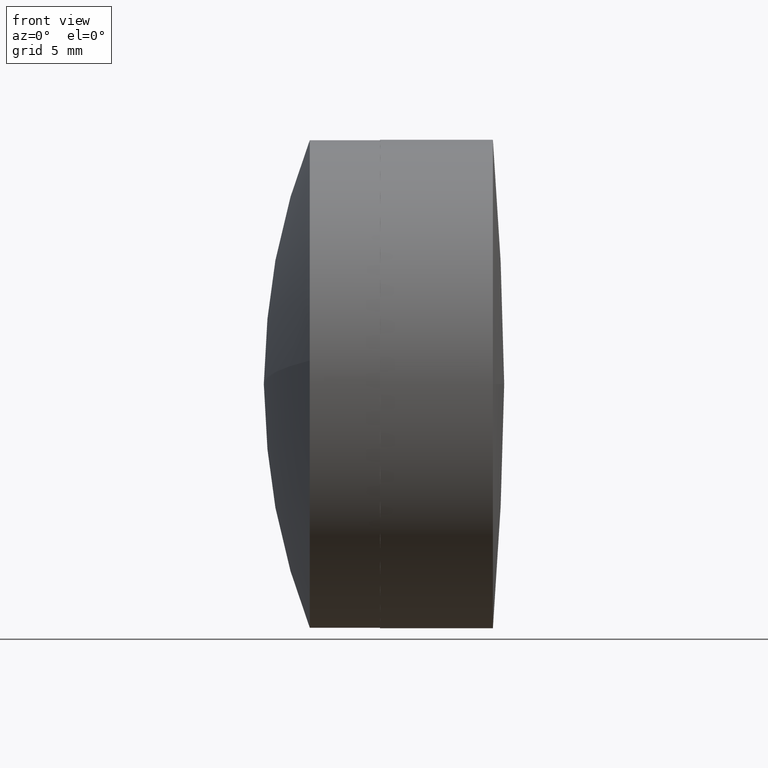
[diagram: clean part render]
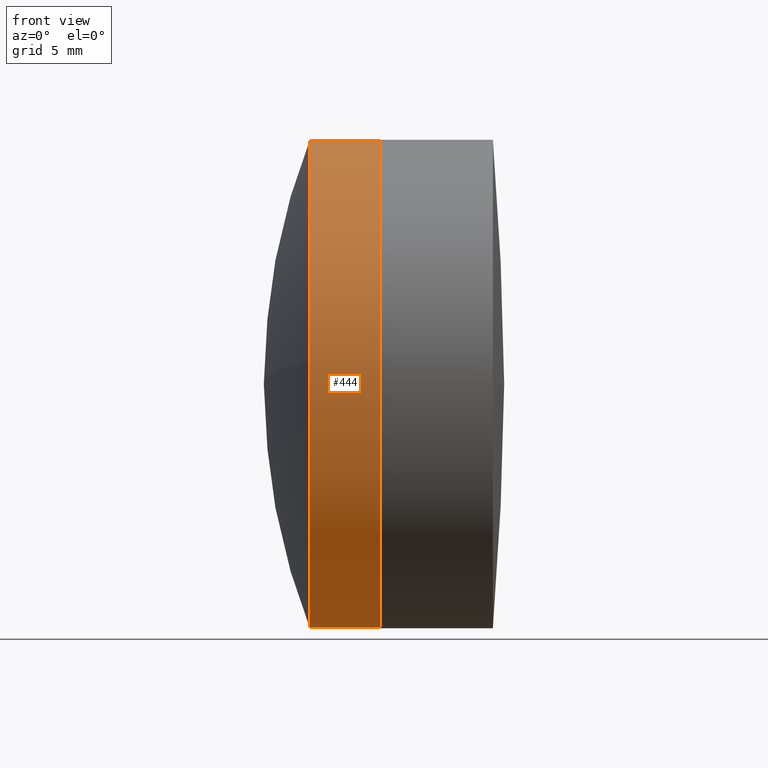
[diagram: same view with one face highlighted and labeled with its STEP entity id]
A machine part, front view. The second image highlights one B-rep face of the part: STEP entity #444.
In plain terms, the highlighted cylindrical surface (partial cylindrical patch) has radius 12.7 mm, axis along (-1, 0, 0).
Its self-contained STEP definition (entity closure, byte-faithful):
#1 = DIRECTION ( 'NONE',  ( -1.000000000000000000, 2.569559148790645509E-17, 4.163336342344337027E-17 ) ) ;
#2 = CARTESIAN_POINT ( 'NONE',  ( -77.59359883042631623, 28.48110664956988103, -12.64106487517395472 ) ) ;
#3 = DIRECTION ( 'NONE',  ( -1.000000000000000000, 2.569559148790645509E-17, 4.163336342344337027E-17 ) ) ;
#4 = CARTESIAN_POINT ( 'NONE',  ( -79.98416275664021668, 28.48110664956988103, -12.64106487517395649 ) ) ;
#10 = VERTEX_POINT ( 'NONE', #410 ) ;
#28 = AXIS2_PLACEMENT_3D ( 'NONE', #442, #349, #173 ) ;
#38 = DIRECTION ( 'NONE',  ( -1.000000000000000000, 2.569559148790645509E-17, 4.163336342344337027E-17 ) ) ;
#62 = LINE ( 'NONE', #4, #445 ) ;
#67 = FACE_OUTER_BOUND ( 'NONE', #161, .T. ) ;
#69 = LINE ( 'NONE', #317, #294 ) ;
#73 = DIRECTION ( 'NONE',  ( 0.000000000000000000, 0.09622674894935845380, 0.9953594389900752848 ) ) ;
#74 = DIRECTION ( 'NONE',  ( 0.000000000000000000, 0.09622674894935845380, 0.9953594389900752848 ) ) ;
#80 = EDGE_CURVE ( 'NONE', #263, #345, #169, .T. ) ;
#81 = AXIS2_PLACEMENT_3D ( 'NONE', #248, #384, #74 ) ;
#82 = CIRCLE ( 'NONE', #28, 12.70000000000000107 ) ;
#85 = VERTEX_POINT ( 'NONE', #168 ) ;
#87 = ORIENTED_EDGE ( 'NONE', *, *, #430, .T. ) ;
#92 = ORIENTED_EDGE ( 'NONE', *, *, #319, .F. ) ;
#95 = AXIS2_PLACEMENT_3D ( 'NONE', #245, #269, #205 ) ;
#99 = ORIENTED_EDGE ( 'NONE', *, *, #324, .T. ) ;
#119 = AXIS2_PLACEMENT_3D ( 'NONE', #414, #3, #73 ) ;
#121 = ORIENTED_EDGE ( 'NONE', *, *, #271, .F. ) ;
#141 = CYLINDRICAL_SURFACE ( 'NONE', #119, 12.70000000000000107 ) ;
#161 = EDGE_LOOP ( 'NONE', ( #121, #99, #198, #87, #395, #92 ) ) ;
#168 = CARTESIAN_POINT ( 'NONE',  ( -73.93899473471948625, 30.92526607288358420, 12.64106487517395472 ) ) ;
#169 = CIRCLE ( 'NONE', #95, 12.70000000000000107 ) ;
#173 = DIRECTION ( 'NONE',  ( 0.000000000000000000, 0.09622674894935845380, 0.9953594389900752848 ) ) ;
#181 = DIRECTION ( 'NONE',  ( 0.000000000000000000, 0.09622674894935845380, 0.9953594389900752848 ) ) ;
#198 = ORIENTED_EDGE ( 'NONE', *, *, #259, .T. ) ;
#205 = DIRECTION ( 'NONE',  ( 0.000000000000000000, 0.09622674894935845380, 0.9953594389900752848 ) ) ;
#210 = VERTEX_POINT ( 'NONE', #2 ) ;
#218 = CARTESIAN_POINT ( 'NONE',  ( -77.59359883042631623, 17.06212148605288448, 1.222079711656841816 ) ) ;
#245 = CARTESIAN_POINT ( 'NONE',  ( -77.59359883042631623, 29.70318636122673084, 5.294805767452579913E-16 ) ) ;
#246 = DIRECTION ( 'NONE',  ( -1.000000000000000000, 2.569559148790645509E-17, 4.163336342344337027E-17 ) ) ;
#248 = CARTESIAN_POINT ( 'NONE',  ( -73.93899473471948625, 29.70318636122673084, 3.773271162598914149E-16 ) ) ;
#259 = EDGE_CURVE ( 'NONE', #398, #85, #276, .T. ) ;
#263 = VERTEX_POINT ( 'NONE', #218 ) ;
#269 = DIRECTION ( 'NONE',  ( -1.000000000000000000, 2.569559148790645509E-17, 4.163336342344337027E-17 ) ) ;
#271 = EDGE_CURVE ( 'NONE', #10, #210, #62, .T. ) ;
#276 = CIRCLE ( 'NONE', #81, 12.70000000000000107 ) ;
#282 = CARTESIAN_POINT ( 'NONE',  ( -77.59359883042631623, 29.70318636122673084, 5.294805767452579913E-16 ) ) ;
#294 = VECTOR ( 'NONE', #1, 1000.000000000000000 ) ;
#310 = CARTESIAN_POINT ( 'NONE',  ( -77.59359883042631623, 30.92526607288358420, 12.64106487517395472 ) ) ;
#317 = CARTESIAN_POINT ( 'NONE',  ( -79.98416275664021668, 30.92526607288358420, 12.64106487517395649 ) ) ;
#319 = EDGE_CURVE ( 'NONE', #210, #263, #438, .T. ) ;
#324 = EDGE_CURVE ( 'NONE', #10, #398, #82, .T. ) ;
#345 = VERTEX_POINT ( 'NONE', #310 ) ;
#349 = DIRECTION ( 'NONE',  ( -1.000000000000000000, 2.569559148790645509E-17, 4.163336342344337027E-17 ) ) ;
#383 = AXIS2_PLACEMENT_3D ( 'NONE', #282, #246, #181 ) ;
#384 = DIRECTION ( 'NONE',  ( -1.000000000000000000, 2.569559148790645509E-17, 4.163336342344337027E-17 ) ) ;
#395 = ORIENTED_EDGE ( 'NONE', *, *, #80, .F. ) ;
#398 = VERTEX_POINT ( 'NONE', #419 ) ;
#410 = CARTESIAN_POINT ( 'NONE',  ( -73.93899473471948625, 28.48110664956988103, -12.64106487517395472 ) ) ;
#414 = CARTESIAN_POINT ( 'NONE',  ( -79.98416275664021668, 29.70318636122673084, 6.290077934722955622E-16 ) ) ;
#419 = CARTESIAN_POINT ( 'NONE',  ( -73.93899473471948625, 17.06212148605277079, 1.222079711656853140 ) ) ;
#430 = EDGE_CURVE ( 'NONE', #85, #345, #69, .T. ) ;
#438 = CIRCLE ( 'NONE', #383, 12.70000000000000107 ) ;
#442 = CARTESIAN_POINT ( 'NONE',  ( -73.93899473471948625, 29.70318636122673084, 3.773271162598914149E-16 ) ) ;
#444 = ADVANCED_FACE ( 'NONE', ( #67 ), #141, .T. ) ;
#445 = VECTOR ( 'NONE', #38, 1000.000000000000000 ) ;